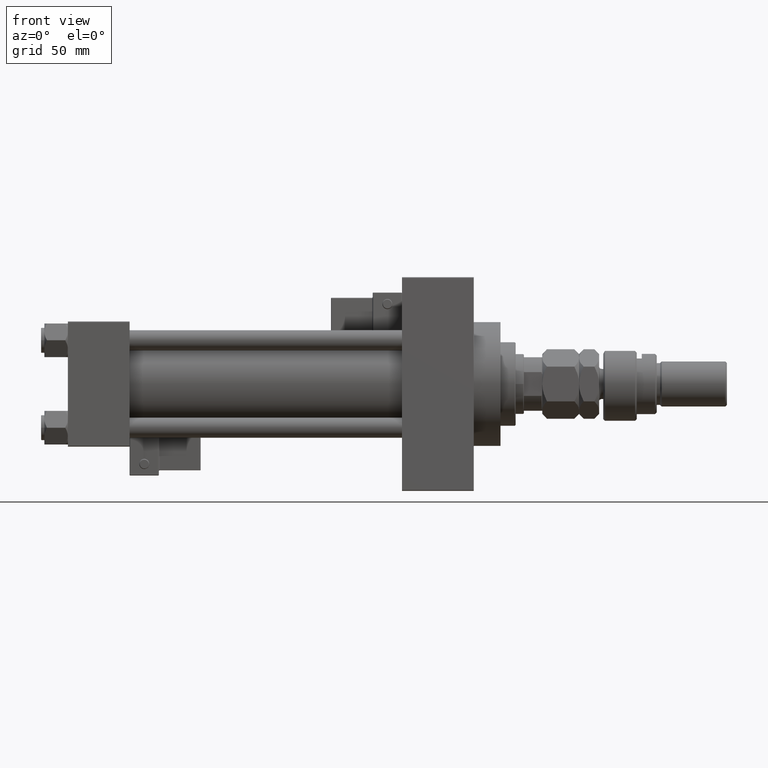
[diagram: clean part render]
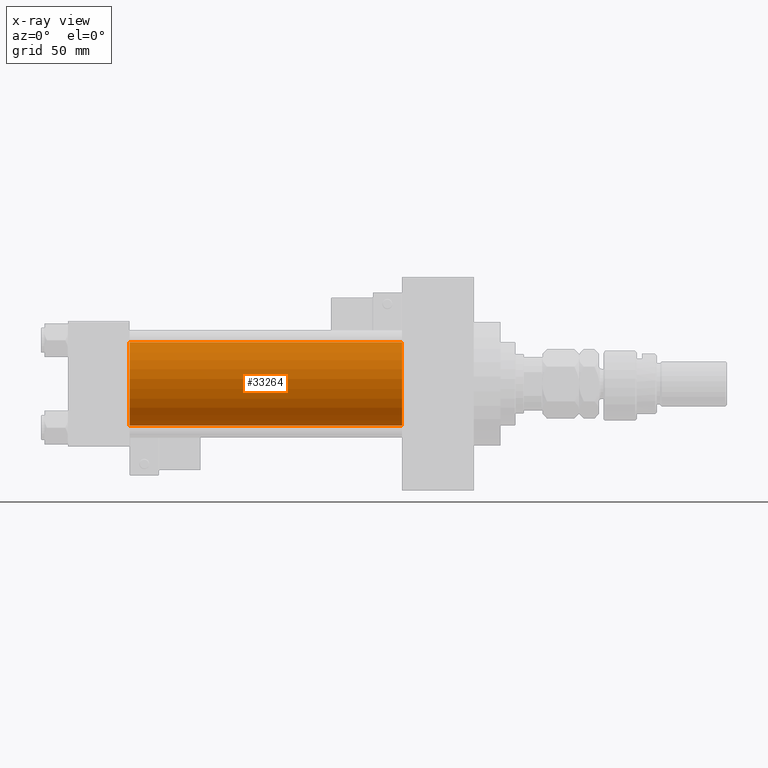
[diagram: x-ray — body ghosted, one internal face saturated and labeled with its STEP entity id]
A machine part, front view, then the same camera in x-ray: the body is ghosted and one INTERNAL B-rep face — a face not visible from any outside direction — is saturated and labeled: STEP entity #33264.
In plain terms, the highlighted cylindrical surface (partial cylindrical patch) has radius 25 mm, axis along (-1, -0, -0).
Its self-contained STEP definition (entity closure, byte-faithful):
#720 = ORIENTED_EDGE ( 'NONE', *, *, #34856, .F. ) ;
#809 = VERTEX_POINT ( 'NONE', #15367 ) ;
#1741 = CARTESIAN_POINT ( 'NONE',  ( 200.0000000000000000, -2.602085213965210642E-15, 0.000000000000000000 ) ) ;
#2828 = DIRECTION ( 'NONE',  ( 0.000000000000000000, 0.000000000000000000, -1.000000000000000000 ) ) ;
#4861 = VERTEX_POINT ( 'NONE', #32928 ) ;
#9696 = VERTEX_POINT ( 'NONE', #17909 ) ;
#11282 = LINE ( 'NONE', #37130, #44419 ) ;
#12108 = CYLINDRICAL_SURFACE ( 'NONE', #42137, 25.00000000000000000 ) ;
#13042 = CARTESIAN_POINT ( 'NONE',  ( 37.00000000000000000, -2.602085213965210642E-15, 0.000000000000000000 ) ) ;
#15367 = CARTESIAN_POINT ( 'NONE',  ( 37.00000000000000000, -2.602085213965210642E-15, 25.00000000000000000 ) ) ;
#16279 = VERTEX_POINT ( 'NONE', #33359 ) ;
#17173 = DIRECTION ( 'NONE',  ( 1.000000000000000000, 0.000000000000000000, 0.000000000000000000 ) ) ;
#17909 = CARTESIAN_POINT ( 'NONE',  ( 200.0000000000000000, -2.602085213965210642E-15, 25.00000000000000000 ) ) ;
#20080 = AXIS2_PLACEMENT_3D ( 'NONE', #13042, #17173, #20781 ) ;
#20095 = CARTESIAN_POINT ( 'NONE',  ( 200.0000000000000000, -2.602085213965210642E-15, 0.000000000000000000 ) ) ;
#20781 = DIRECTION ( 'NONE',  ( 0.000000000000000000, 0.000000000000000000, -1.000000000000000000 ) ) ;
#24495 = FACE_OUTER_BOUND ( 'NONE', #53823, .T. ) ;
#24946 = CARTESIAN_POINT ( 'NONE',  ( 200.0000000000000000, -2.602085213965210642E-15, 25.00000000000000000 ) ) ;
#28598 = ORIENTED_EDGE ( 'NONE', *, *, #51814, .T. ) ;
#28622 = DIRECTION ( 'NONE',  ( -1.000000000000000000, -0.000000000000000000, -0.000000000000000000 ) ) ;
#32928 = CARTESIAN_POINT ( 'NONE',  ( 200.0000000000000000, 4.595317839031724996E-16, -25.00000000000000000 ) ) ;
#33264 = ADVANCED_FACE ( 'NONE', ( #24495 ), #12108, .F. ) ;
#33359 = CARTESIAN_POINT ( 'NONE',  ( 37.00000000000000000, 4.595317839031724996E-16, -25.00000000000000000 ) ) ;
#34856 = EDGE_CURVE ( 'NONE', #809, #16279, #53501, .T. ) ;
#37130 = CARTESIAN_POINT ( 'NONE',  ( 200.0000000000000000, 4.595317839031724996E-16, -25.00000000000000000 ) ) ;
#37303 = VECTOR ( 'NONE', #37322, 1000.000000000000000 ) ;
#37322 = DIRECTION ( 'NONE',  ( -1.000000000000000000, -0.000000000000000000, -0.000000000000000000 ) ) ;
#37419 = DIRECTION ( 'NONE',  ( 0.000000000000000000, 0.000000000000000000, 1.000000000000000000 ) ) ;
#38655 = ORIENTED_EDGE ( 'NONE', *, *, #49607, .F. ) ;
#42137 = AXIS2_PLACEMENT_3D ( 'NONE', #20095, #49549, #37419 ) ;
#42985 = LINE ( 'NONE', #24946, #37303 ) ;
#44419 = VECTOR ( 'NONE', #28622, 1000.000000000000000 ) ;
#45128 = CIRCLE ( 'NONE', #52142, 25.00000000000000000 ) ;
#46380 = ORIENTED_EDGE ( 'NONE', *, *, #47725, .T. ) ;
#47725 = EDGE_CURVE ( 'NONE', #9696, #4861, #45128, .T. ) ;
#49549 = DIRECTION ( 'NONE',  ( -1.000000000000000000, -0.000000000000000000, -0.000000000000000000 ) ) ;
#49607 = EDGE_CURVE ( 'NONE', #9696, #809, #42985, .T. ) ;
#51814 = EDGE_CURVE ( 'NONE', #4861, #16279, #11282, .T. ) ;
#52057 = DIRECTION ( 'NONE',  ( 1.000000000000000000, 0.000000000000000000, 0.000000000000000000 ) ) ;
#52142 = AXIS2_PLACEMENT_3D ( 'NONE', #1741, #52057, #2828 ) ;
#53501 = CIRCLE ( 'NONE', #20080, 25.00000000000000000 ) ;
#53823 = EDGE_LOOP ( 'NONE', ( #46380, #28598, #720, #38655 ) ) ;